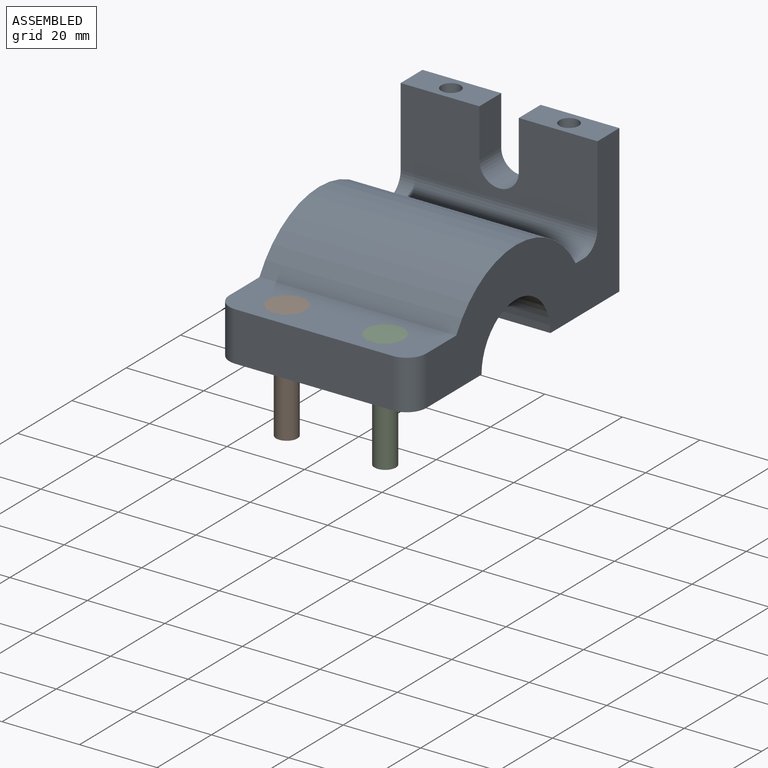
[diagram: assembled view]
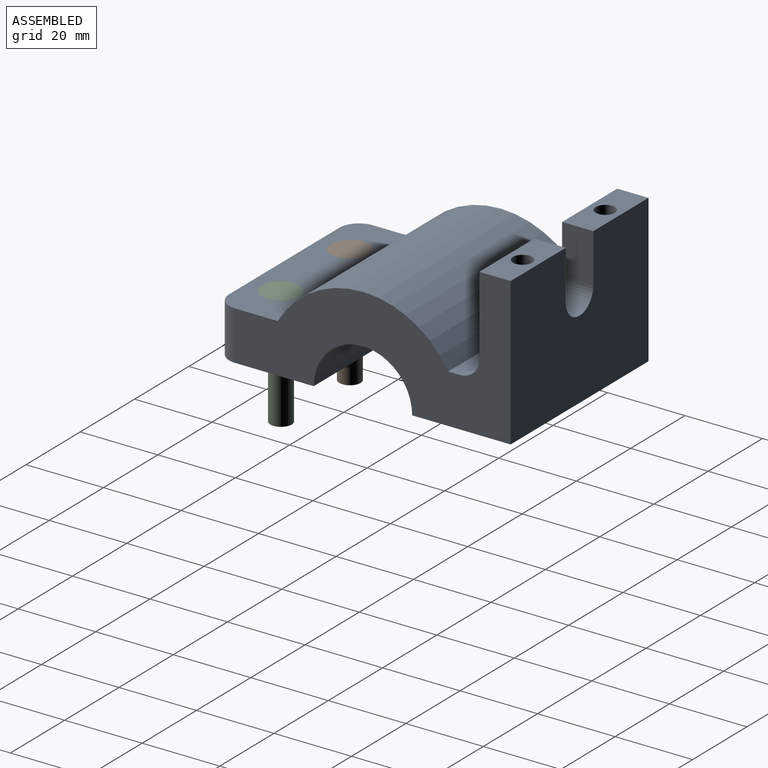
[diagram: assembled view, second angle]
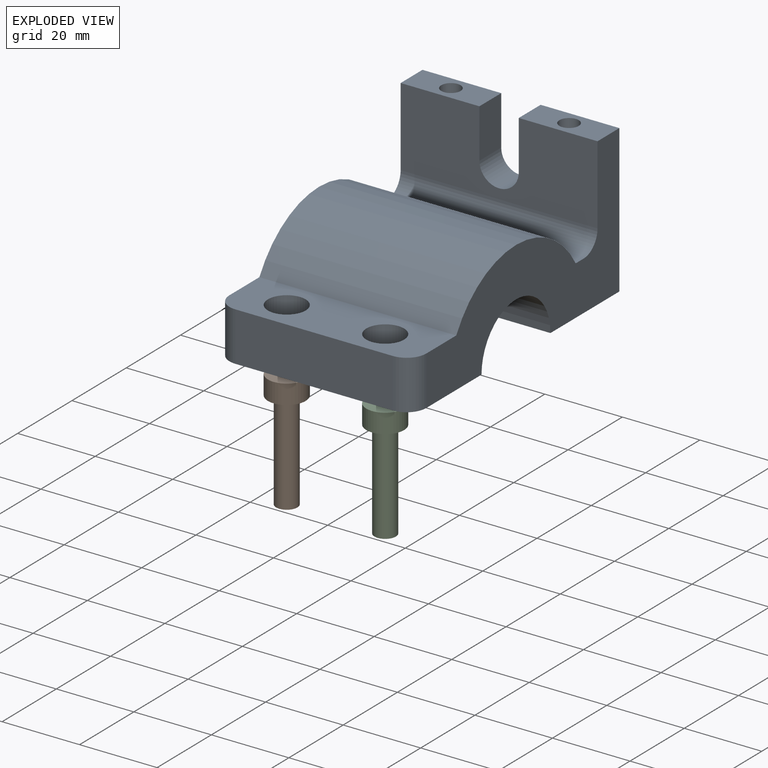
[diagram: exploded view]
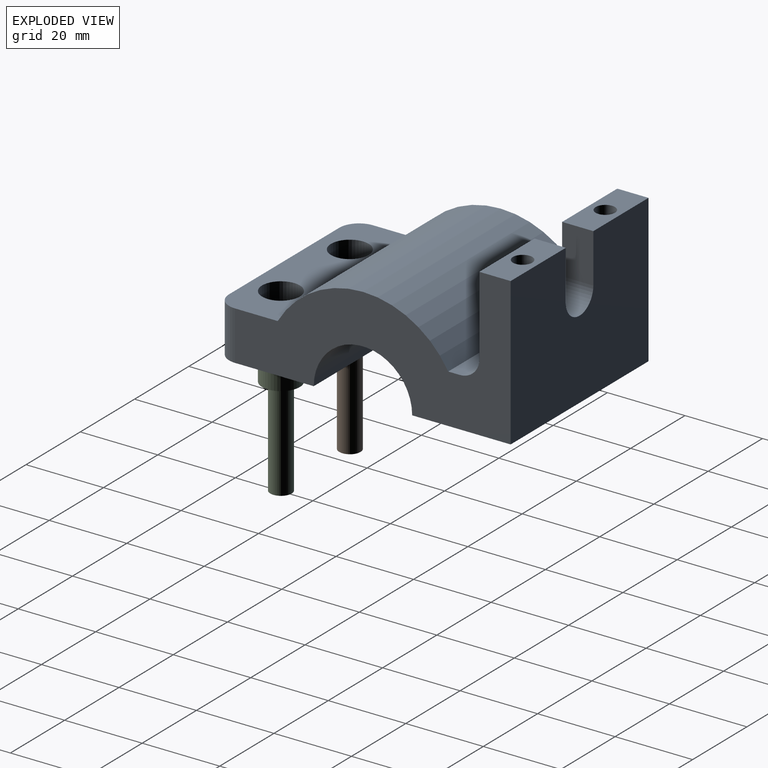
[diagram: exploded view, second angle]
ASSEMBLY  parts=3 mates=2
PART A: 27 faces, bbox 50.8x76.2x38.1 mm
  f0: plane 20.32x8.05mm, normal (0,0,1), area 144mm2, adj f1,f2,f10,f21,f25
  f1: plane 50.8x20.32mm, normal (0,-1,0), area 862.7mm2, adj f0,f10,f11,f18,f19,f20,f21,f22
  f2: plane 50.8x38.1mm, normal (0,1,0), area 1765.9mm2, adj f0,f9,f10,f11,f18,f19,f20,f21
  f3: plane 50.8x2.97mm, normal (0,0,1), area 151mm2, adj f4,f10,f11,f22
  f4: cylinder r=25.4mm len=50.8mm, axis (1,0,0), area 2702.4mm2, adj f3,f5,f10,f11
  f5: plane 50.8x16.1mm, normal (0,0,1), area 657.6mm2, adj f4,f6,f10,f11,f14,f17,f23,f24
  f6: plane 40.64x12.7mm, normal (0,-1,0), area 516.1mm2, adj f5,f7,f23,f24
  f7: plane 50.8x25.4mm, normal (0,0,-1), area 1231.7mm2, adj f6,f8,f10,f11,f12,f15,f23,f24
  f8: cylinder r=12.7mm len=50.8mm, axis (1,0,0), area 2026.8mm2, adj f7,f9,f10,f11
  f9: plane 50.8x25.4mm, normal (0,0,-1), area 1251.1mm2, adj f2,f8,f10,f11,f25,f26
  f10: plane 71.12x38.1mm, normal (-1,0,0), area 1256.2mm2, adj f0,f1,f2,f3,f4,f5,f7,f8
  f11: plane 71.12x38.1mm, normal (1,0,0), area 1256.2mm2, adj f1,f2,f3,f4,f5,f7,f8,f9
  f12: cylinder r=2.75mm len=7.7mm, axis (0,0,1), area 133mm2, adj f7,f13
  f13: plane 9.75x9.75mm, normal (0,0,1), area 50.9mm2, adj f12,f14
  f14: cylinder r=4.88mm len=9.75mm, axis (0,0,1), area 153.2mm2, adj f5,f13
  f15: cylinder r=2.75mm len=7.7mm, axis (0,0,1), area 133mm2, adj f7,f16
  f16: plane 9.75x9.75mm, normal (0,0,1), area 50.9mm2, adj f15,f17
  f17: cylinder r=4.88mm len=9.75mm, axis (0,0,1), area 153.2mm2, adj f5,f16
  f18: plane 20.32x8.05mm, normal (0,0,1), area 144mm2, adj f1,f2,f11,f20,f26
  f19: cylinder r=5.08mm len=10.16mm, axis (0,1,0), area 128.5mm2, adj f1,f2,f20,f21
  f20: plane 12.7x8.05mm, normal (-1,0,0), area 102.3mm2, adj f1,f2,f18,f19
  f21: plane 12.7x8.05mm, normal (1,0,0), area 102.3mm2, adj f0,f1,f2,f19
  f22: cylinder r=5.08mm len=50.8mm, axis (1,0,0), area 405.4mm2, adj f1,f3,f10,f11
  f23: cylinder r=5.08mm len=12.7mm, axis (0,0,-1), area 101.3mm2, adj f5,f6,f7,f11
  f24: cylinder r=5.08mm len=12.7mm, axis (0,0,1), area 101.3mm2, adj f5,f6,f7,f10
  f25: cylinder r=2.5mm len=38.1mm, axis (0,0,1), area 598.5mm2, adj f0,f9
  f26: cylinder r=2.5mm len=38.1mm, axis (0,0,1), area 598.5mm2, adj f9,f18
PART B: 5 faces, bbox 9.8x9.8x30.4 mm
  f0: cylinder r=4.88mm len=9.75mm, axis (0,0,-1), area 153.3mm2, adj f1,f2
  f1: plane 9.75x9.75mm, normal (0,0,1), area 74.7mm2, adj f0
  f2: plane 9.75x9.75mm, normal (0,0,-1), area 50.9mm2, adj f0,f3
  f3: cylinder r=2.76mm len=25.4mm, axis (0,0,1), area 439.8mm2, adj f2,f4
  f4: plane 5.51x5.51mm, normal (0,0,-1), area 23.9mm2, adj f3
PART C: same geometry as B
PLACE A t=(54.71,51.25,-1.15)mm
PLACE B t=(16.61,21.2,0.2)mm
PLACE C t=(42.01,21.2,0.2)mm
MATE slider A.f15 <-> C.f0  axis (0,0,1) through (42.01,21.2,0.2)mm
MATE slider B.f0 <-> A.f12  axis (0,0,-1) through (16.61,21.2,0.2)mm
